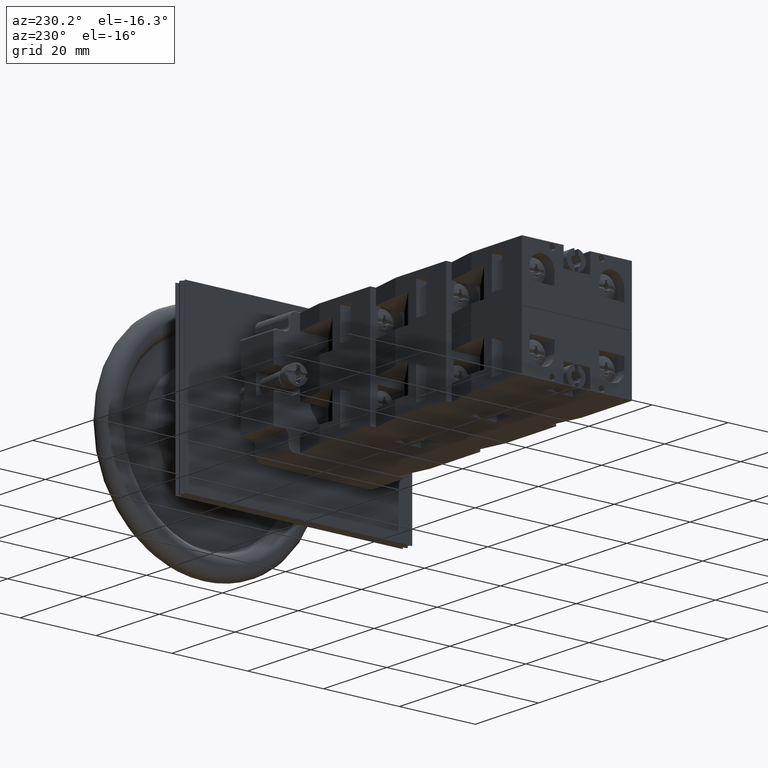
[diagram: clean part render]
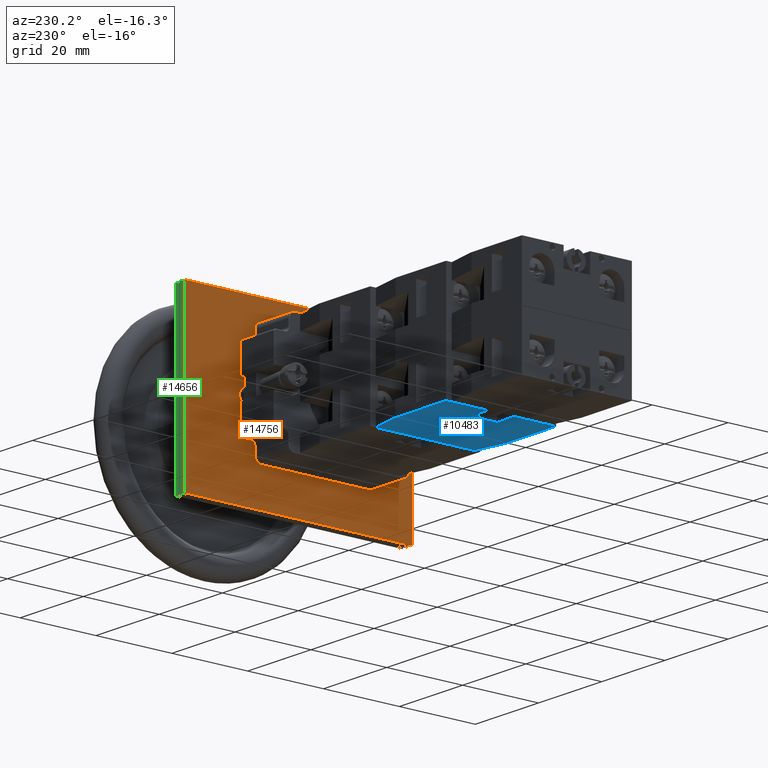
[diagram: same view with three faces highlighted in distinct colors, each labeled with its STEP entity id]
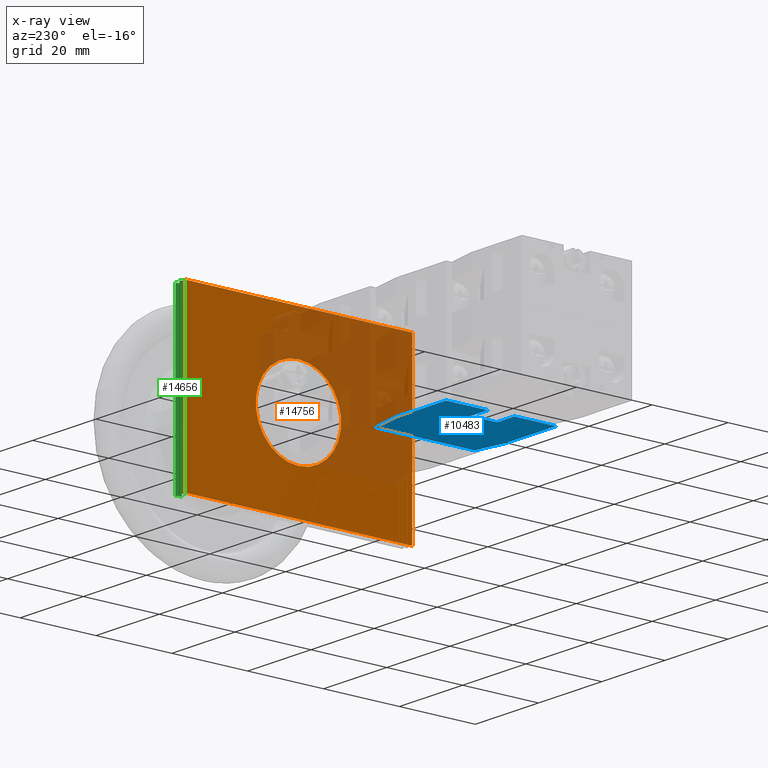
[diagram: x-ray of the same camera — body ghosted, the three highlighted faces saturated]
A machine part, auxiliary view with three faces highlighted in distinct colors.
The next image is the same camera in x-ray (body ghosted, the three faces saturated) — at least one of them is partly hidden behind the body in this view.
Their STEP definitions:

[orange] entity #14756 — the highlighted planar face has unit normal (-1, 0, -0).
#14584=CARTESIAN_POINT('',(-15.704183619849179,-32.725398273954283,11.250000000000000));
#14585=VERTEX_POINT('',#14584);
#14586=CARTESIAN_POINT('',(-15.704183619849179,-32.725398273954283,22.500000000000000));
#14587=DIRECTION('',(1.0,0.0,0.0));
#14588=DIRECTION('',(0.0,0.0,1.0));
#14589=AXIS2_PLACEMENT_3D('',#14586,#14587,#14588);
#14590=CIRCLE('',#14589,11.250000000000000);
#14591=EDGE_CURVE('',#14585,#14585,#14590,.T.);
#14618=CARTESIAN_POINT('',(-15.704183619849179,-2.725398273954287,45.0));
#14619=VERTEX_POINT('',#14618);
#14638=CARTESIAN_POINT('',(-15.704183619849179,-2.725398273954287,0.0));
#14639=VERTEX_POINT('',#14638);
#14648=CARTESIAN_POINT('',(-15.704183619849179,-2.725398273954287,0.0));
#14649=DIRECTION('',(0.0,0.0,1.0));
#14650=VECTOR('',#14649,45.0);
#14651=LINE('',#14648,#14650);
#14652=EDGE_CURVE('',#14639,#14619,#14651,.T.);
#14702=CARTESIAN_POINT('',(-15.704183619849179,-62.725398273954283,45.0));
#14703=VERTEX_POINT('',#14702);
#14712=CARTESIAN_POINT('',(-15.704183619849179,-62.725398273954283,0.0));
#14713=VERTEX_POINT('',#14712);
#14714=CARTESIAN_POINT('',(-15.704183619849179,-62.725398273954283,0.0));
#14715=DIRECTION('',(0.0,0.0,1.0));
#14716=VECTOR('',#14715,45.0);
#14717=LINE('',#14714,#14716);
#14718=EDGE_CURVE('',#14713,#14703,#14717,.T.);
#14732=CARTESIAN_POINT('',(-15.704183619849179,-62.725398273954283,0.0));
#14733=DIRECTION('',(-1.0,0.0,0.0));
#14734=DIRECTION('',(0.0,0.0,1.0));
#14735=AXIS2_PLACEMENT_3D('',#14732,#14733,#14734);
#14736=PLANE('',#14735);
#14737=CARTESIAN_POINT('',(-15.704183619849179,-62.725398273954283,45.0));
#14738=DIRECTION('',(0.0,1.0,0.0));
#14739=VECTOR('',#14738,60.0);
#14740=LINE('',#14737,#14739);
#14741=EDGE_CURVE('',#14703,#14619,#14740,.T.);
#14742=ORIENTED_EDGE('',*,*,#14741,.T.);
#14743=ORIENTED_EDGE('',*,*,#14652,.F.);
#14744=CARTESIAN_POINT('',(-15.704183619849179,-2.725398273954287,0.0));
#14745=DIRECTION('',(0.0,-1.0,0.0));
#14746=VECTOR('',#14745,60.0);
#14747=LINE('',#14744,#14746);
#14748=EDGE_CURVE('',#14639,#14713,#14747,.T.);
#14749=ORIENTED_EDGE('',*,*,#14748,.T.);
#14750=ORIENTED_EDGE('',*,*,#14718,.T.);
#14751=EDGE_LOOP('',(#14742,#14743,#14749,#14750));
#14752=FACE_OUTER_BOUND('',#14751,.T.);
#14753=ORIENTED_EDGE('',*,*,#14591,.T.);
#14754=EDGE_LOOP('',(#14753));
#14755=FACE_BOUND('',#14754,.T.);
#14756=ADVANCED_FACE('',(#14752,#14755),#14736,.T.);

[blue] entity #10483 — the highlighted planar face has unit normal (-0, -0, -1).
#8786=CARTESIAN_POINT('',(-44.936741828918457,7.797073323279626,14.699999999999999));
#8787=VERTEX_POINT('',#8786);
#8794=CARTESIAN_POINT('',(-44.936741828918471,23.797073323279623,14.699999999999999));
#8795=VERTEX_POINT('',#8794);
#8796=CARTESIAN_POINT('',(-44.936741828918457,7.797073323279626,14.699999999999999));
#8797=DIRECTION('',(0.0,1.0,0.0));
#8798=VECTOR('',#8797,15.999999999999996);
#8799=LINE('',#8796,#8798);
#8800=EDGE_CURVE('',#8787,#8795,#8799,.T.);
#8867=CARTESIAN_POINT('',(-43.436741828918457,-0.202926676720380,14.699999999999999));
#8868=VERTEX_POINT('',#8867);
#8875=CARTESIAN_POINT('',(-43.436741828918457,-0.202926676720380,14.699999999999999));
#8876=DIRECTION('',(-0.184288535050185,0.982872186934322,0.0));
#8877=VECTOR('',#8876,8.139410298049860);
#8878=LINE('',#8875,#8877);
#8879=EDGE_CURVE('',#8868,#8787,#8878,.T.);
#9018=CARTESIAN_POINT('',(-17.436741828918457,-0.202926676720377,14.699999999999999));
#9019=VERTEX_POINT('',#9018);
#9026=CARTESIAN_POINT('',(-17.436741828918457,-0.202926676720377,14.699999999999999));
#9027=DIRECTION('',(-1.0,0.0,0.0));
#9028=VECTOR('',#9027,26.0);
#9029=LINE('',#9026,#9028);
#9030=EDGE_CURVE('',#9019,#8868,#9029,.T.);
#9111=CARTESIAN_POINT('',(-15.936741828918466,7.797073323279626,14.699999999999999));
#9112=VERTEX_POINT('',#9111);
#9119=CARTESIAN_POINT('',(-15.936741828918466,7.797073323279626,14.699999999999999));
#9120=DIRECTION('',(-0.184288535050184,-0.982872186934322,0.0));
#9121=VECTOR('',#9120,8.139410298049855);
#9122=LINE('',#9119,#9121);
#9123=EDGE_CURVE('',#9112,#9019,#9122,.T.);
#10218=CARTESIAN_POINT('',(-26.936741828918468,18.297073323279626,14.699999999999999));
#10219=VERTEX_POINT('',#10218);
#10228=CARTESIAN_POINT('',(-26.936741828918468,23.797073323279626,14.699999999999999));
#10229=VERTEX_POINT('',#10228);
#10230=CARTESIAN_POINT('',(-26.936741828918468,23.797073323279626,14.699999999999999));
#10231=DIRECTION('',(0.0,-1.0,0.0));
#10232=VECTOR('',#10231,5.500000000000000);
#10233=LINE('',#10230,#10232);
#10234=EDGE_CURVE('',#10229,#10219,#10233,.T.);
#10289=CARTESIAN_POINT('',(-33.936741828918464,18.297073323279619,14.699999999999999));
#10290=VERTEX_POINT('',#10289);
#10298=CARTESIAN_POINT('',(-33.936741828918464,23.797073323279623,14.699999999999999));
#10299=VERTEX_POINT('',#10298);
#10306=CARTESIAN_POINT('',(-33.936741828918464,18.297073323279619,14.699999999999999));
#10307=DIRECTION('',(0.0,1.0,0.0));
#10308=VECTOR('',#10307,5.500000000000004);
#10309=LINE('',#10306,#10308);
#10310=EDGE_CURVE('',#10290,#10299,#10309,.T.);
#10323=CARTESIAN_POINT('',(-26.936741828918468,18.297073323279626,14.699999999999999));
#10324=DIRECTION('',(-1.0,0.0,0.0));
#10325=VECTOR('',#10324,6.999999999999996);
#10326=LINE('',#10323,#10325);
#10327=EDGE_CURVE('',#10219,#10290,#10326,.T.);
#10343=CARTESIAN_POINT('',(-15.936741828918466,23.797073323279626,14.699999999999999));
#10344=VERTEX_POINT('',#10343);
#10345=CARTESIAN_POINT('',(-26.936741828918468,23.797073323279626,14.699999999999999));
#10346=DIRECTION('',(1.0,0.0,0.0));
#10347=VECTOR('',#10346,11.000000000000002);
#10348=LINE('',#10345,#10347);
#10349=EDGE_CURVE('',#10229,#10344,#10348,.T.);
#10366=CARTESIAN_POINT('',(-44.936741828918471,23.797073323279623,14.699999999999999));
#10367=DIRECTION('',(1.0,0.0,0.0));
#10368=VECTOR('',#10367,11.000000000000007);
#10369=LINE('',#10366,#10368);
#10370=EDGE_CURVE('',#8795,#10299,#10369,.T.);
#10414=CARTESIAN_POINT('',(-15.936741828918466,23.797073323279626,14.699999999999999));
#10415=DIRECTION('',(0.0,-1.0,0.0));
#10416=VECTOR('',#10415,16.0);
#10417=LINE('',#10414,#10416);
#10418=EDGE_CURVE('',#10344,#9112,#10417,.T.);
#10466=CARTESIAN_POINT('',(-30.436741828918457,12.124046801833057,14.699999999999999));
#10467=DIRECTION('',(0.0,0.0,1.0));
#10468=DIRECTION('',(1.0,0.0,0.0));
#10469=AXIS2_PLACEMENT_3D('',#10466,#10467,#10468);
#10470=PLANE('',#10469);
#10471=ORIENTED_EDGE('',*,*,#10310,.T.);
#10472=ORIENTED_EDGE('',*,*,#10370,.F.);
#10473=ORIENTED_EDGE('',*,*,#8800,.F.);
#10474=ORIENTED_EDGE('',*,*,#8879,.F.);
#10475=ORIENTED_EDGE('',*,*,#9030,.F.);
#10476=ORIENTED_EDGE('',*,*,#9123,.F.);
#10477=ORIENTED_EDGE('',*,*,#10418,.F.);
#10478=ORIENTED_EDGE('',*,*,#10349,.F.);
#10479=ORIENTED_EDGE('',*,*,#10234,.T.);
#10480=ORIENTED_EDGE('',*,*,#10327,.T.);
#10481=EDGE_LOOP('',(#10471,#10472,#10473,#10474,#10475,#10476,#10477,#10478,#10479,#10480));
#10482=FACE_OUTER_BOUND('',#10481,.T.);
#10483=ADVANCED_FACE('',(#10482),#10470,.T.);

[green] entity #14656 — the highlighted face is a freeform B-spline surface patch.
#14607=CARTESIAN_POINT('',(-12.704183619849175,-2.725398273954286,0.0));
#14608=CARTESIAN_POINT('',(-13.683988853155304,-7.243589001706696,0.0));
#14609=CARTESIAN_POINT('',(-13.964099132856656,2.032835085571791,0.0));
#14610=CARTESIAN_POINT('',(-14.667084388146536,-4.961008747338168,0.0));
#14611=CARTESIAN_POINT('',(-15.704183619849177,-2.725398273954286,0.0));
#14612=CARTESIAN_POINT('',(-12.704183619849175,-2.725398273954286,45.0));
#14613=CARTESIAN_POINT('',(-13.683988853155304,-7.243589001706696,45.0));
#14614=CARTESIAN_POINT('',(-13.964099132856656,2.032835085571791,45.0));
#14615=CARTESIAN_POINT('',(-14.667084388146536,-4.961008747338168,45.0));
#14616=CARTESIAN_POINT('',(-15.704183619849177,-2.725398273954286,45.0));
#14617=B_SPLINE_SURFACE_WITH_KNOTS('',4,1,((#14607,#14612),(#14608,#14613),(#14609,#14614),(#14610,#14615),(#14611,#14616)),.UNSPECIFIED.,.F.,.F.,.U.,(5,5),(2,2),(0.0,1.0),(0.0,4.500000000000000),.UNSPECIFIED.);
#14618=CARTESIAN_POINT('',(-15.704183619849179,-2.725398273954287,45.0));
#14619=VERTEX_POINT('',#14618);
#14620=CARTESIAN_POINT('',(-12.704183619849179,-2.725398273954287,45.0));
#14621=VERTEX_POINT('',#14620);
#14622=CARTESIAN_POINT('',(-15.704183619849177,-2.725398273954286,45.0));
#14623=CARTESIAN_POINT('',(-14.667084388146536,-4.961008747338168,45.0));
#14624=CARTESIAN_POINT('',(-13.964099132856656,2.032835085571791,45.0));
#14625=CARTESIAN_POINT('',(-13.683988853155304,-7.243589001706696,45.0));
#14626=CARTESIAN_POINT('',(-12.704183619849175,-2.725398273954286,45.0));
#14627=QUASI_UNIFORM_CURVE('',4,(#14622,#14623,#14624,#14625,#14626),.UNSPECIFIED.,.F.,.U.);
#14628=EDGE_CURVE('',#14619,#14621,#14627,.T.);
#14629=ORIENTED_EDGE('',*,*,#14628,.T.);
#14630=CARTESIAN_POINT('',(-12.704183619849179,-2.725398273954287,0.0));
#14631=VERTEX_POINT('',#14630);
#14632=CARTESIAN_POINT('',(-12.704183619849179,-2.725398273954287,0.0));
#14633=DIRECTION('',(0.0,0.0,1.0));
#14634=VECTOR('',#14633,45.0);
#14635=LINE('',#14632,#14634);
#14636=EDGE_CURVE('',#14631,#14621,#14635,.T.);
#14637=ORIENTED_EDGE('',*,*,#14636,.F.);
#14638=CARTESIAN_POINT('',(-15.704183619849179,-2.725398273954287,0.0));
#14639=VERTEX_POINT('',#14638);
#14640=CARTESIAN_POINT('',(-12.704183619849175,-2.725398273954286,0.0));
#14641=CARTESIAN_POINT('',(-13.683988853155304,-7.243589001706696,0.0));
#14642=CARTESIAN_POINT('',(-13.964099132856656,2.032835085571791,0.0));
#14643=CARTESIAN_POINT('',(-14.667084388146536,-4.961008747338168,0.0));
#14644=CARTESIAN_POINT('',(-15.704183619849177,-2.725398273954286,0.0));
#14645=QUASI_UNIFORM_CURVE('',4,(#14640,#14641,#14642,#14643,#14644),.UNSPECIFIED.,.F.,.U.);
#14646=EDGE_CURVE('',#14631,#14639,#14645,.T.);
#14647=ORIENTED_EDGE('',*,*,#14646,.T.);
#14648=CARTESIAN_POINT('',(-15.704183619849179,-2.725398273954287,0.0));
#14649=DIRECTION('',(0.0,0.0,1.0));
#14650=VECTOR('',#14649,45.0);
#14651=LINE('',#14648,#14650);
#14652=EDGE_CURVE('',#14639,#14619,#14651,.T.);
#14653=ORIENTED_EDGE('',*,*,#14652,.T.);
#14654=EDGE_LOOP('',(#14629,#14637,#14647,#14653));
#14655=FACE_OUTER_BOUND('',#14654,.T.);
#14656=ADVANCED_FACE('',(#14655),#14617,.T.);